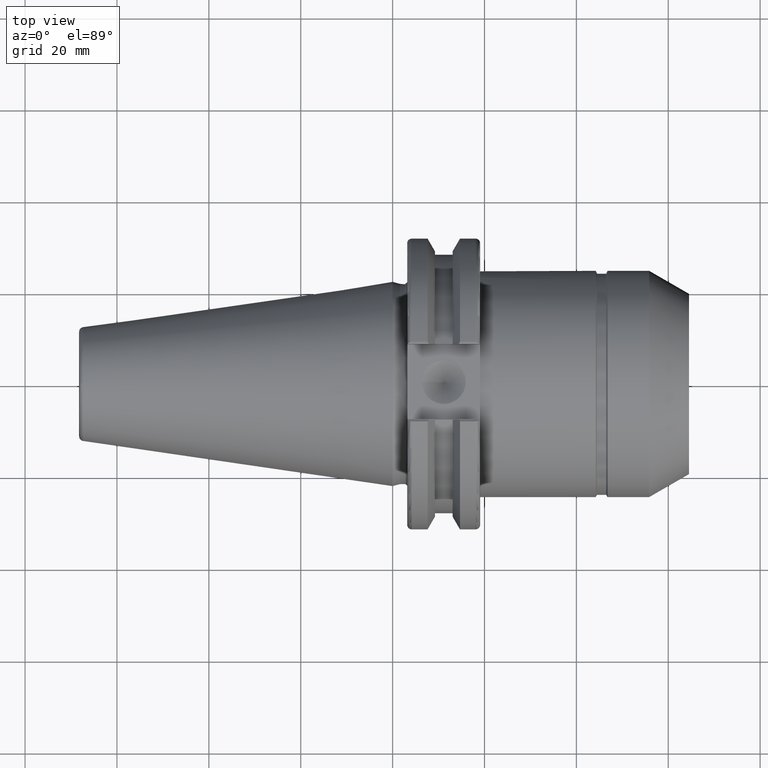
[diagram: clean part render]
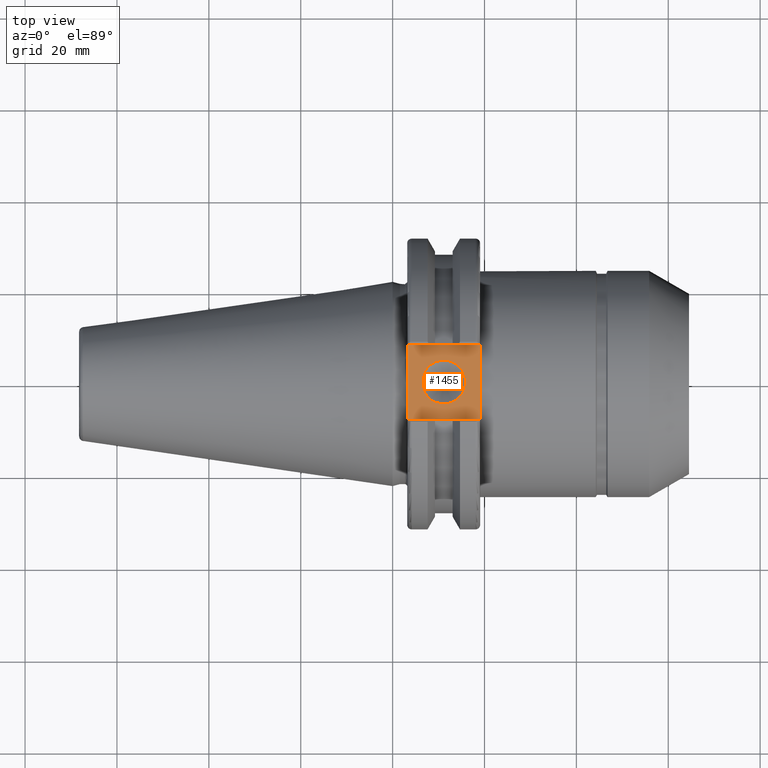
[diagram: same view with one face highlighted and labeled with its STEP entity id]
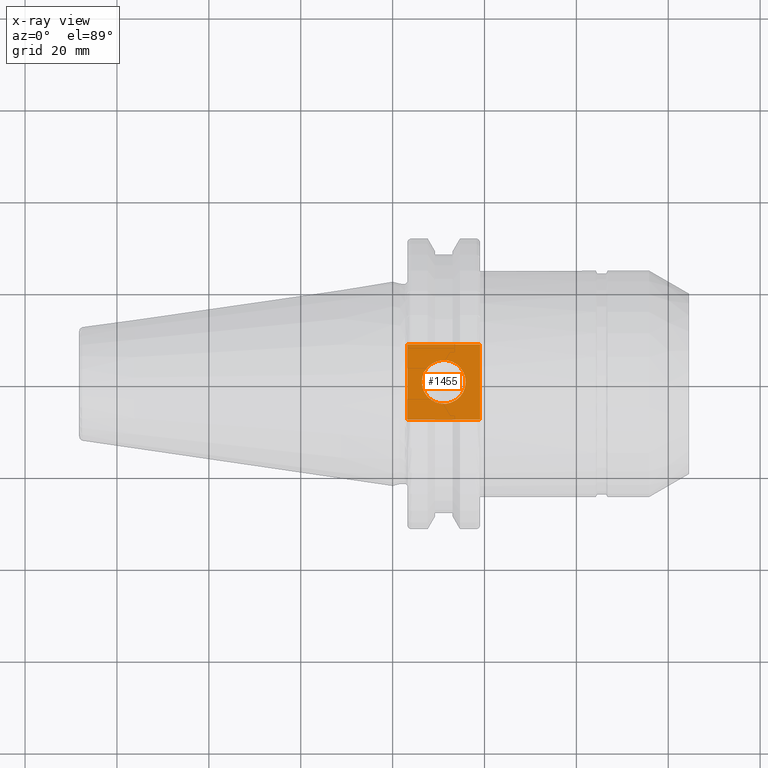
[diagram: x-ray of the same camera — body ghosted, the highlighted face saturated]
A machine part, top view. The second image highlights one B-rep face of the part: STEP entity #1455.
The next image is the same camera in x-ray: the body ghosted, the highlighted face saturated — about 0% of this face is hidden behind the body in this view.
In plain terms, the highlighted planar face has unit normal (0, 0, 1).
Its self-contained STEP definition (entity closure, byte-faithful):
#73=FACE_BOUND('',#311,.T.);
#102=PLANE('',#1652);
#216=FACE_OUTER_BOUND('',#310,.T.);
#310=EDGE_LOOP('',(#1306,#1307,#1308,#1309));
#311=EDGE_LOOP('',(#1310));
#358=LINE('',#2449,#439);
#365=LINE('',#2502,#446);
#373=LINE('',#2533,#454);
#375=LINE('',#2575,#456);
#439=VECTOR('',#1925,10.);
#446=VECTOR('',#1946,10.);
#454=VECTOR('',#1958,10.);
#456=VECTOR('',#1968,10.);
#548=CIRCLE('',#1644,4.7625);
#630=VERTEX_POINT('',#2446);
#631=VERTEX_POINT('',#2448);
#641=VERTEX_POINT('',#2499);
#642=VERTEX_POINT('',#2501);
#696=VERTEX_POINT('',#2761);
#809=EDGE_CURVE('',#630,#631,#358,.T.);
#824=EDGE_CURVE('',#641,#642,#365,.T.);
#836=EDGE_CURVE('',#641,#631,#373,.T.);
#844=EDGE_CURVE('',#630,#642,#375,.T.);
#902=EDGE_CURVE('',#696,#696,#548,.T.);
#1306=ORIENTED_EDGE('',*,*,#824,.F.);
#1307=ORIENTED_EDGE('',*,*,#836,.T.);
#1308=ORIENTED_EDGE('',*,*,#809,.F.);
#1309=ORIENTED_EDGE('',*,*,#844,.T.);
#1310=ORIENTED_EDGE('',*,*,#902,.T.);
#1455=ADVANCED_FACE('',(#216,#73),#102,.T.);
#1644=AXIS2_PLACEMENT_3D('',#2762,#2059,#2060);
#1652=AXIS2_PLACEMENT_3D('',#2771,#2076,#2077);
#1925=DIRECTION('',(0.,1.,0.));
#1946=DIRECTION('',(0.,-1.,0.));
#1958=DIRECTION('',(-1.,0.,0.));
#1968=DIRECTION('',(1.,-1.31581988103722E-16,0.));
#2059=DIRECTION('center_axis',(0.,0.,-1.));
#2060=DIRECTION('ref_axis',(1.,0.,0.));
#2076=DIRECTION('center_axis',(0.,0.,1.));
#2077=DIRECTION('ref_axis',(1.,0.,0.));
#2446=CARTESIAN_POINT('',(3.175,-8.19,25.));
#2448=CARTESIAN_POINT('',(3.175,8.19,25.));
#2449=CARTESIAN_POINT('',(3.175,15.875,25.));
#2499=CARTESIAN_POINT('',(19.05,8.19,25.));
#2501=CARTESIAN_POINT('',(19.05,-8.19,25.));
#2502=CARTESIAN_POINT('',(19.05,0.,25.));
#2533=CARTESIAN_POINT('',(20.05,8.19,25.));
#2575=CARTESIAN_POINT('',(3.175,-8.19,25.));
#2761=CARTESIAN_POINT('',(6.3716,-5.83238038093927E-16,25.));
#2762=CARTESIAN_POINT('Origin',(11.1341,0.,25.));
#2771=CARTESIAN_POINT('Origin',(15.7075,0.,25.));